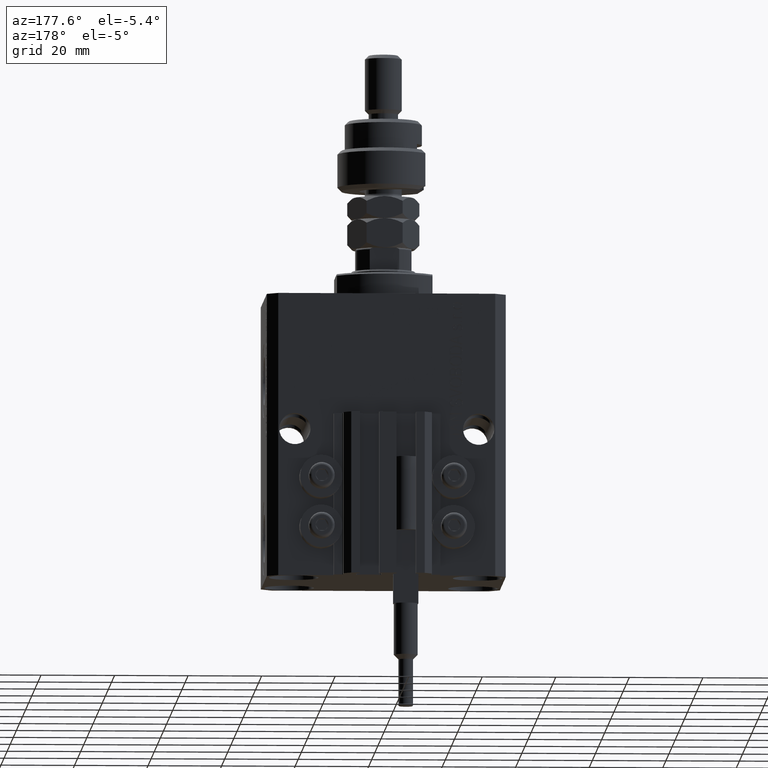
[diagram: clean part render]
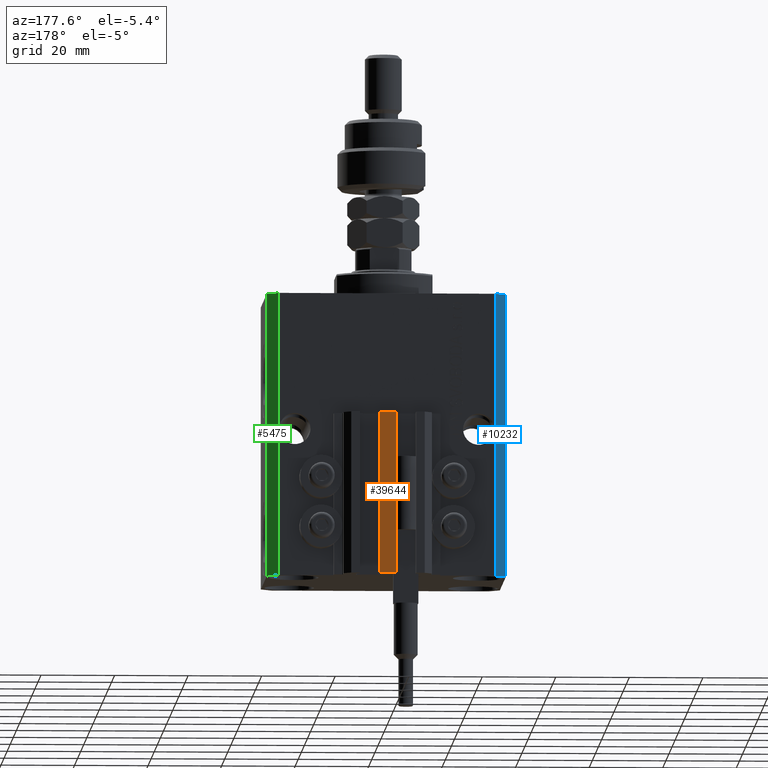
[diagram: same view with three faces highlighted in distinct colors, each labeled with its STEP entity id]
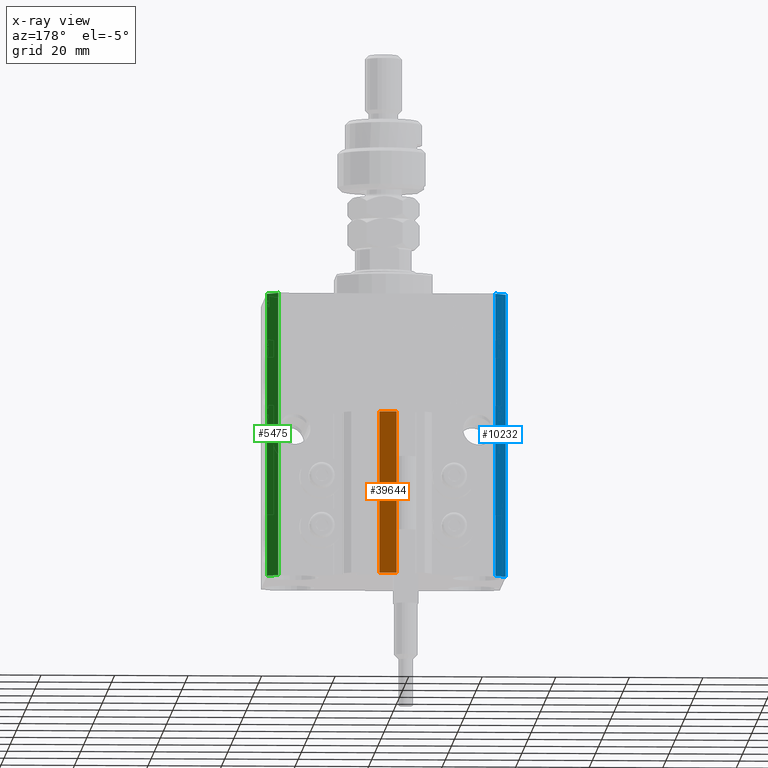
[diagram: x-ray of the same camera — body ghosted, the three highlighted faces saturated]
A machine part, auxiliary view with three faces highlighted in distinct colors.
The next image is the same camera in x-ray (body ghosted, the three faces saturated) — at least one of them is partly hidden behind the body in this view.
Their STEP definitions:

[orange] entity #39644 — the highlighted planar face has unit normal (0, -1, 0).
#1167 = FACE_OUTER_BOUND ( 'NONE', #47264, .T. ) ;
#2082 = ORIENTED_EDGE ( 'NONE', *, *, #30462, .F. ) ;
#3903 = CARTESIAN_POINT ( 'NONE',  ( 2.349999999999999645, 30.49999999999949907, -77.00000000000000000 ) ) ;
#4605 = CARTESIAN_POINT ( 'NONE',  ( 2.349999999999999645, 30.49999999999949907, -33.00000000000000000 ) ) ;
#6242 = AXIS2_PLACEMENT_3D ( 'NONE', #49161, #36484, #44256 ) ;
#6822 = LINE ( 'NONE', #3903, #25138 ) ;
#8551 = CARTESIAN_POINT ( 'NONE',  ( 2.349999999999999645, 30.49999999999949907, -77.00000000000000000 ) ) ;
#8632 = ORIENTED_EDGE ( 'NONE', *, *, #10355, .F. ) ;
#9543 = VERTEX_POINT ( 'NONE', #8551 ) ;
#10355 = EDGE_CURVE ( 'NONE', #9543, #35906, #6822, .T. ) ;
#11453 = LINE ( 'NONE', #26759, #31755 ) ;
#11481 = ORIENTED_EDGE ( 'NONE', *, *, #12792, .T. ) ;
#12160 = VERTEX_POINT ( 'NONE', #45818 ) ;
#12792 = EDGE_CURVE ( 'NONE', #12160, #15710, #11453, .T. ) ;
#15710 = VERTEX_POINT ( 'NONE', #23601 ) ;
#21372 = CARTESIAN_POINT ( 'NONE',  ( -2.350000000000003197, 30.49999999999949907, -33.00000000000000000 ) ) ;
#21428 = PLANE ( 'NONE',  #6242 ) ;
#21497 = CARTESIAN_POINT ( 'NONE',  ( -2.350000000000003197, 30.49999999999949907, -77.00000000000000000 ) ) ;
#23380 = DIRECTION ( 'NONE',  ( 0.000000000000000000, 0.000000000000000000, 1.000000000000000000 ) ) ;
#23601 = CARTESIAN_POINT ( 'NONE',  ( -2.350000000000003197, 30.49999999999949907, -33.00000000000000000 ) ) ;
#25138 = VECTOR ( 'NONE', #51349, 1000.000000000000000 ) ;
#26759 = CARTESIAN_POINT ( 'NONE',  ( -2.350000000000003197, 30.49999999999949907, -77.00000000000000000 ) ) ;
#28645 = LINE ( 'NONE', #21372, #50157 ) ;
#30462 = EDGE_CURVE ( 'NONE', #12160, #9543, #48977, .T. ) ;
#31755 = VECTOR ( 'NONE', #23380, 1000.000000000000000 ) ;
#33029 = ORIENTED_EDGE ( 'NONE', *, *, #39925, .T. ) ;
#35906 = VERTEX_POINT ( 'NONE', #4605 ) ;
#36484 = DIRECTION ( 'NONE',  ( 0.000000000000000000, -1.000000000000000000, 0.000000000000000000 ) ) ;
#39644 = ADVANCED_FACE ( 'NONE', ( #1167 ), #21428, .F. ) ;
#39925 = EDGE_CURVE ( 'NONE', #15710, #35906, #28645, .T. ) ;
#40206 = DIRECTION ( 'NONE',  ( 1.000000000000000000, 0.000000000000000000, 0.000000000000000000 ) ) ;
#44256 = DIRECTION ( 'NONE',  ( 0.000000000000000000, -0.000000000000000000, -1.000000000000000000 ) ) ;
#45801 = VECTOR ( 'NONE', #40206, 1000.000000000000000 ) ;
#45818 = CARTESIAN_POINT ( 'NONE',  ( -2.350000000000003197, 30.49999999999949907, -77.00000000000000000 ) ) ;
#47264 = EDGE_LOOP ( 'NONE', ( #33029, #8632, #2082, #11481 ) ) ;
#48601 = DIRECTION ( 'NONE',  ( 1.000000000000000000, 0.000000000000000000, 0.000000000000000000 ) ) ;
#48977 = LINE ( 'NONE', #21497, #45801 ) ;
#49161 = CARTESIAN_POINT ( 'NONE',  ( -2.350000000000003197, 30.49999999999949907, -77.00000000000000000 ) ) ;
#50157 = VECTOR ( 'NONE', #48601, 1000.000000000000000 ) ;
#51349 = DIRECTION ( 'NONE',  ( 0.000000000000000000, 0.000000000000000000, 1.000000000000000000 ) ) ;

[blue] entity #10232 — the highlighted planar face has unit normal (-0.7071, 0.7071, 0).
#1895 = DIRECTION ( 'NONE',  ( -0.7071067811865475727, 0.7071067811865475727, 0.000000000000000000 ) ) ;
#4423 = ORIENTED_EDGE ( 'NONE', *, *, #40092, .F. ) ;
#5481 = DIRECTION ( 'NONE',  ( 0.000000000000000000, 0.000000000000000000, 1.000000000000000000 ) ) ;
#6062 = AXIS2_PLACEMENT_3D ( 'NONE', #33816, #1895, #30188 ) ;
#8681 = CARTESIAN_POINT ( 'NONE',  ( -29.49999999999650413, 22.49999999999949907, -77.00000000000000000 ) ) ;
#8770 = VECTOR ( 'NONE', #25937, 1000.000000000000114 ) ;
#9635 = LINE ( 'NONE', #21318, #38292 ) ;
#10118 = VERTEX_POINT ( 'NONE', #8681 ) ;
#10232 = ADVANCED_FACE ( 'NONE', ( #21639 ), #45233, .T. ) ;
#10547 = EDGE_CURVE ( 'NONE', #10118, #37259, #9635, .T. ) ;
#12097 = DIRECTION ( 'NONE',  ( 0.000000000000000000, 0.000000000000000000, 1.000000000000000000 ) ) ;
#13319 = CARTESIAN_POINT ( 'NONE',  ( -32.49999999999650413, 19.49999999999949907, -77.00000000000000000 ) ) ;
#15070 = DIRECTION ( 'NONE',  ( -0.7071067811865474617, -0.7071067811865474617, 0.000000000000000000 ) ) ;
#15316 = VECTOR ( 'NONE', #12097, 1000.000000000000000 ) ;
#16461 = CARTESIAN_POINT ( 'NONE',  ( -29.49999999999650413, 22.49999999999949907, -77.00000000000000000 ) ) ;
#19194 = EDGE_CURVE ( 'NONE', #10118, #22302, #29579, .T. ) ;
#20119 = ORIENTED_EDGE ( 'NONE', *, *, #19194, .T. ) ;
#21318 = CARTESIAN_POINT ( 'NONE',  ( -29.49999999999650413, 22.49999999999949907, -77.00000000000000000 ) ) ;
#21381 = ORIENTED_EDGE ( 'NONE', *, *, #38058, .T. ) ;
#21639 = FACE_OUTER_BOUND ( 'NONE', #46437, .T. ) ;
#22231 = ORIENTED_EDGE ( 'NONE', *, *, #10547, .F. ) ;
#22302 = VERTEX_POINT ( 'NONE', #13319 ) ;
#23766 = LINE ( 'NONE', #43985, #15316 ) ;
#25937 = DIRECTION ( 'NONE',  ( -0.7071067811865474617, -0.7071067811865474617, 0.000000000000000000 ) ) ;
#26598 = VERTEX_POINT ( 'NONE', #40081 ) ;
#29579 = LINE ( 'NONE', #16461, #8770 ) ;
#30188 = DIRECTION ( 'NONE',  ( -0.7071067811865474617, -0.7071067811865474617, 0.000000000000000000 ) ) ;
#33816 = CARTESIAN_POINT ( 'NONE',  ( -29.49999999999650413, 22.49999999999949907, -77.00000000000000000 ) ) ;
#34777 = LINE ( 'NONE', #50577, #43588 ) ;
#37259 = VERTEX_POINT ( 'NONE', #37924 ) ;
#37924 = CARTESIAN_POINT ( 'NONE',  ( -29.49999999999650413, 22.49999999999949907, 0.000000000000000000 ) ) ;
#38058 = EDGE_CURVE ( 'NONE', #22302, #26598, #23766, .T. ) ;
#38292 = VECTOR ( 'NONE', #5481, 1000.000000000000000 ) ;
#40081 = CARTESIAN_POINT ( 'NONE',  ( -32.49999999999650413, 19.49999999999949907, 0.000000000000000000 ) ) ;
#40092 = EDGE_CURVE ( 'NONE', #37259, #26598, #34777, .T. ) ;
#43588 = VECTOR ( 'NONE', #15070, 1000.000000000000114 ) ;
#43985 = CARTESIAN_POINT ( 'NONE',  ( -32.49999999999650413, 19.49999999999949907, -77.00000000000000000 ) ) ;
#45233 = PLANE ( 'NONE',  #6062 ) ;
#46437 = EDGE_LOOP ( 'NONE', ( #4423, #22231, #20119, #21381 ) ) ;
#50577 = CARTESIAN_POINT ( 'NONE',  ( -29.49999999999650413, 22.49999999999949907, 0.000000000000000000 ) ) ;

[green] entity #5475 — the highlighted planar face has unit normal (0.7071, 0.7071, 0).
#1539 = EDGE_LOOP ( 'NONE', ( #33411, #25338, #17891, #46398 ) ) ;
#2541 = DIRECTION ( 'NONE',  ( -0.7071067811865351382, 0.7071067811865598962, 0.000000000000000000 ) ) ;
#4403 = VECTOR ( 'NONE', #31794, 1000.000000000000000 ) ;
#4646 = EDGE_CURVE ( 'NONE', #13075, #40897, #5542, .T. ) ;
#5475 = ADVANCED_FACE ( 'NONE', ( #22017 ), #13998, .T. ) ;
#5542 = LINE ( 'NONE', #13611, #48945 ) ;
#7561 = AXIS2_PLACEMENT_3D ( 'NONE', #10344, #30576, #2541 ) ;
#9985 = EDGE_CURVE ( 'NONE', #24044, #45459, #19866, .T. ) ;
#10344 = CARTESIAN_POINT ( 'NONE',  ( 32.49999999999702993, 19.49999999999945999, -77.00000000000000000 ) ) ;
#13075 = VERTEX_POINT ( 'NONE', #23255 ) ;
#13611 = CARTESIAN_POINT ( 'NONE',  ( 32.49999999999702993, 19.49999999999945999, -77.00000000000000000 ) ) ;
#13998 = PLANE ( 'NONE',  #7561 ) ;
#14307 = DIRECTION ( 'NONE',  ( -0.7071067811865352493, 0.7071067811865597852, 0.000000000000000000 ) ) ;
#17891 = ORIENTED_EDGE ( 'NONE', *, *, #44905, .T. ) ;
#19866 = LINE ( 'NONE', #35173, #4403 ) ;
#21294 = CARTESIAN_POINT ( 'NONE',  ( 29.49999999999707967, 22.49999999999951328, 0.000000000000000000 ) ) ;
#22017 = FACE_OUTER_BOUND ( 'NONE', #1539, .T. ) ;
#23255 = CARTESIAN_POINT ( 'NONE',  ( 32.49999999999702993, 19.49999999999945999, -77.00000000000000000 ) ) ;
#24044 = VERTEX_POINT ( 'NONE', #30481 ) ;
#24735 = LINE ( 'NONE', #36666, #31344 ) ;
#25338 = ORIENTED_EDGE ( 'NONE', *, *, #4646, .F. ) ;
#27822 = VECTOR ( 'NONE', #14307, 1000.000000000000000 ) ;
#29408 = CARTESIAN_POINT ( 'NONE',  ( 32.49999999999702993, 19.49999999999945999, 0.000000000000000000 ) ) ;
#30481 = CARTESIAN_POINT ( 'NONE',  ( 29.49999999999707967, 22.49999999999951328, -77.00000000000000000 ) ) ;
#30576 = DIRECTION ( 'NONE',  ( 0.7071067811865598962, 0.7071067811865351382, -0.000000000000000000 ) ) ;
#31344 = VECTOR ( 'NONE', #40568, 1000.000000000000000 ) ;
#31794 = DIRECTION ( 'NONE',  ( 0.000000000000000000, 0.000000000000000000, 1.000000000000000000 ) ) ;
#32289 = LINE ( 'NONE', #37190, #27822 ) ;
#33411 = ORIENTED_EDGE ( 'NONE', *, *, #39940, .F. ) ;
#35173 = CARTESIAN_POINT ( 'NONE',  ( 29.49999999999707967, 22.49999999999951328, -77.00000000000000000 ) ) ;
#36666 = CARTESIAN_POINT ( 'NONE',  ( 32.49999999999702993, 19.49999999999945999, -77.00000000000000000 ) ) ;
#36688 = DIRECTION ( 'NONE',  ( 0.000000000000000000, 0.000000000000000000, 1.000000000000000000 ) ) ;
#37190 = CARTESIAN_POINT ( 'NONE',  ( 32.49999999999702993, 19.49999999999945999, 0.000000000000000000 ) ) ;
#39940 = EDGE_CURVE ( 'NONE', #40897, #45459, #32289, .T. ) ;
#40568 = DIRECTION ( 'NONE',  ( -0.7071067811865352493, 0.7071067811865597852, 0.000000000000000000 ) ) ;
#40897 = VERTEX_POINT ( 'NONE', #29408 ) ;
#44905 = EDGE_CURVE ( 'NONE', #13075, #24044, #24735, .T. ) ;
#45459 = VERTEX_POINT ( 'NONE', #21294 ) ;
#46398 = ORIENTED_EDGE ( 'NONE', *, *, #9985, .T. ) ;
#48945 = VECTOR ( 'NONE', #36688, 1000.000000000000000 ) ;